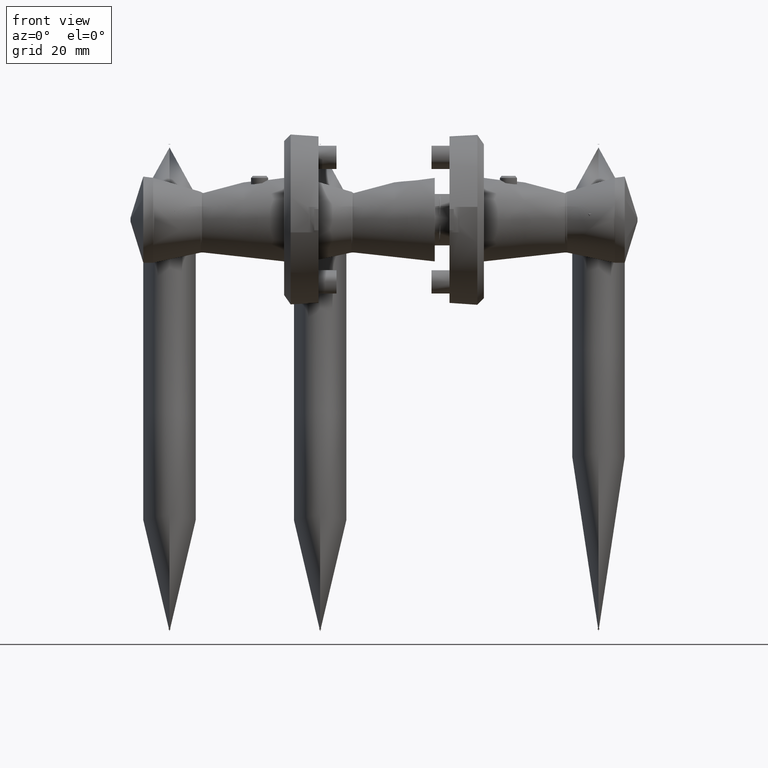
[diagram: clean part render]
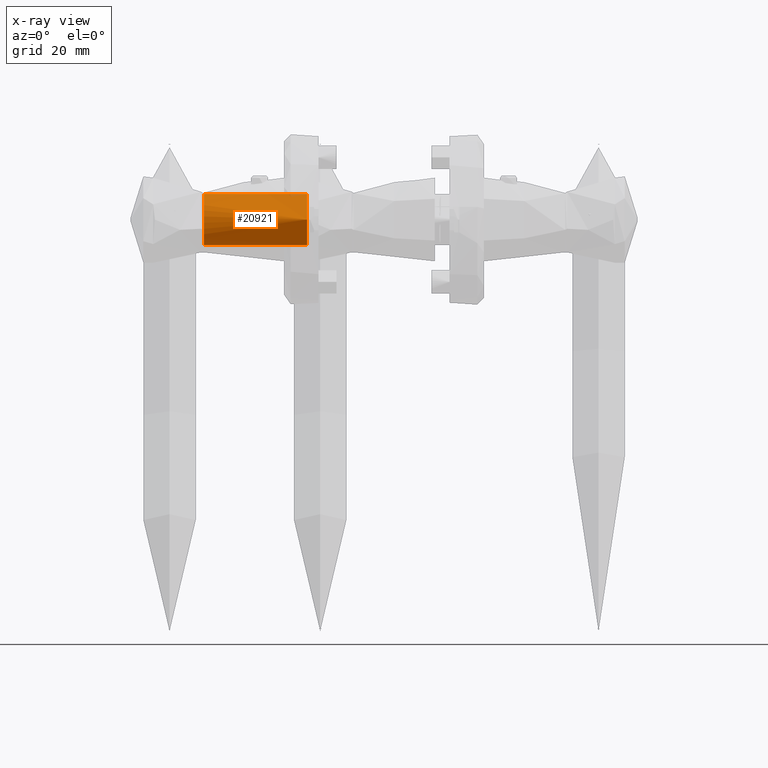
[diagram: x-ray — body ghosted, one internal face saturated and labeled with its STEP entity id]
A machine part, front view, then the same camera in x-ray: the body is ghosted and one INTERNAL B-rep face — a face not visible from any outside direction — is saturated and labeled: STEP entity #20921.
In plain terms, the highlighted cylindrical surface (bore or boss wall) has radius 7.85 mm, axis along (1, -0, 0).
Its self-contained STEP definition (entity closure, byte-faithful):
#193 = CARTESIAN_POINT ( 'NONE',  ( -2.332032967751791000, 2.419320908842566500, 6.849024537163265000 ) ) ;
#500 = CARTESIAN_POINT ( 'NONE',  ( -2.204687313181861600, 1.997229744117843900, 9.038161069933451600 ) ) ;
#669 = CARTESIAN_POINT ( 'NONE',  ( -1.975401069011184700, -0.6512087187244575100, 9.919252164818809400 ) ) ;
#859 = AXIS2_PLACEMENT_3D ( 'NONE', #22105, #32604, #25166 ) ;
#1851 = FACE_BOUND ( 'NONE', #28116, .T. ) ;
#2069 = CARTESIAN_POINT ( 'NONE',  ( -1.950000000000003700, 0.0000000000000000000, 9.999999999999998200 ) ) ;
#2229 = CARTESIAN_POINT ( 'NONE',  ( -1.950000000000002200, -1.540743955509788700E-030, 24.50000000000000400 ) ) ;
#2364 = EDGE_LOOP ( 'NONE', ( #19512 ) ) ;
#2861 = EDGE_CURVE ( 'NONE', #42682, #42682, #20266, .T. ) ;
#3574 = CARTESIAN_POINT ( 'NONE',  ( -2.178237088088308800, 1.882872320206646600, 5.847327085301095000 ) ) ;
#3883 = CARTESIAN_POINT ( 'NONE',  ( -1.975360598605854400, 0.6506773914354803100, 9.919382335193827100 ) ) ;
#4147 = DIRECTION ( 'NONE',  ( -4.930380657631323800E-032, -2.708156025014320000E-032, -1.000000000000000000 ) ) ;
#4458 = VERTEX_POINT ( 'NONE', #21328 ) ;
#7158 = CARTESIAN_POINT ( 'NONE',  ( -2.125298850725607600, 1.653862943130005800, 9.381742250496413900 ) ) ;
#7405 = CARTESIAN_POINT ( 'NONE',  ( -9.800000000000004300, -1.540743955509788700E-030, 24.50000000000000400 ) ) ;
#7471 = CARTESIAN_POINT ( 'NONE',  ( -2.277701288959411000, 2.245415541473274200, 6.388600133605322600 ) ) ;
#7631 = CARTESIAN_POINT ( 'NONE',  ( -2.098814674166306700, 1.527437675453569500, 5.514210146021984100 ) ) ;
#7792 = CARTESIAN_POINT ( 'NONE',  ( -1.975438278726483700, -0.6520438707957726400, 5.080865027122196200 ) ) ;
#8114 = CARTESIAN_POINT ( 'NONE',  ( -2.124852006187543100, -1.651858893999302600, 5.616388023070398600 ) ) ;
#8581 = CARTESIAN_POINT ( 'NONE',  ( -2.178193592102579700, -1.882711239978612300, 5.847114561690546000 ) ) ;
#10876 = CARTESIAN_POINT ( 'NONE',  ( -2.331953651937856100, 2.419078772989926600, 8.152085949960660800 ) ) ;
#11037 = CARTESIAN_POINT ( 'NONE',  ( -2.258489346735791200, 2.182940008413206900, 8.761182814414107500 ) ) ;
#11208 = CARTESIAN_POINT ( 'NONE',  ( -2.027718302237833100, 1.112353659052461200, 9.744878191350069900 ) ) ;
#11354 = CARTESIAN_POINT ( 'NONE',  ( -1.990421415154610500, 0.8099368660496068000, 5.129219729421328600 ) ) ;
#11892 = DIRECTION ( 'NONE',  ( 4.930380657631323800E-032, 2.708156025014320000E-032, 1.000000000000000000 ) ) ;
#11973 = CARTESIAN_POINT ( 'NONE',  ( -2.353272379704628700, -2.483927050670777800, 7.827365174470015700 ) ) ;
#12307 = CARTESIAN_POINT ( 'NONE',  ( -2.277493905325219400, -2.244724847799438400, 6.387186893733562500 ) ) ;
#14595 = CARTESIAN_POINT ( 'NONE',  ( -2.027546660310510300, 1.111073571916674200, 5.254535162568857700 ) ) ;
#14748 = CARTESIAN_POINT ( 'NONE',  ( -2.358691909127927500, 2.499886779604182600, 7.665969627596673800 ) ) ;
#15010 = DIRECTION ( 'NONE',  ( -1.000000000000000000, 0.0000000000000000000, 0.0000000000000000000 ) ) ;
#15073 = CARTESIAN_POINT ( 'NONE',  ( -2.124991034199245700, 1.652487650323281300, 5.616965081919939700 ) ) ;
#15241 = CARTESIAN_POINT ( 'NONE',  ( -2.027393085559543500, -1.110030853112572700, 5.254003660950455200 ) ) ;
#15390 = CARTESIAN_POINT ( 'NONE',  ( -2.353057057999242500, -2.483281829276064100, 7.168260144729440100 ) ) ;
#15551 = CARTESIAN_POINT ( 'NONE',  ( -2.125309370236196000, -1.653917895037600600, 9.381705236244958000 ) ) ;
#16021 = CARTESIAN_POINT ( 'NONE',  ( -2.331899841439355500, -2.418910466870163800, 6.847610447314207400 ) ) ;
#16755 = CIRCLE ( 'NONE', #859, 7.850000000000003200 ) ;
#18338 = CARTESIAN_POINT ( 'NONE',  ( -2.098649725234991600, -1.526616055230512800, 5.513571094196454900 ) ) ;
#18495 = CARTESIAN_POINT ( 'NONE',  ( -2.316578114705572000, 2.371764267103500400, 6.692637083956152600 ) ) ;
#18578 = ORIENTED_EDGE ( 'NONE', *, *, #2861, .T. ) ;
#18814 = CARTESIAN_POINT ( 'NONE',  ( -1.950021670309646700, 0.1649011203877686300, 5.000068044777511200 ) ) ;
#19290 = CARTESIAN_POINT ( 'NONE',  ( -2.332127616856070100, -2.419613174249179100, 8.150025874492421000 ) ) ;
#19512 = ORIENTED_EDGE ( 'NONE', *, *, #47218, .F. ) ;
#20266 = B_SPLINE_CURVE_WITH_KNOTS ( 'NONE', 3,
 ( #44779, #22032, #25742, #3883, #29629, #11208, #33180, #36718, #7158, #500, #11037, #36866, #10876, #47820, #14748, #29804, #44299, #193, #18495, #7471, #33008, #37014, #3574, #15073, #7631, #44455, #14595, #11354, #40422, #22351, #18814, #29472, #44144, #7792, #37341, #15241, #22660, #18338, #8114, #8581, #30115, #45243, #12307, #34414, #16021, #15390, #23122, #45078, #11973, #19290, #45390, #37812, #41852, #15551, #34264, #27159, #30735, #41377, #669, #26995, #22966, #38123 ),
 .UNSPECIFIED., .T., .F.,
 ( 4, 2, 2, 2, 2, 2, 2, 2, 2, 2, 2, 2, 2, 2, 2, 2, 2, 2, 2, 2, 2, 2, 2, 2, 2, 2, 2, 2, 2, 2, 4 ),
 ( 0.0000000000000000000, 0.0004916676346564878400, 0.0009833352693129756800, 0.001475002903969464000, 0.001966670538625952200, 0.002950005807938928800, 0.003441673442595418800, 0.003933341077251909700, 0.004425008711908399700, 0.004916676346564889700, 0.005408343981221381400, 0.005900011615877871400, 0.006391679250534361400, 0.006883346885190851400, 0.007375014519847343200, 0.007866682154503833200, 0.008358349789160324900, 0.008850017423816814900, 0.009341685058473306700, 0.009833352693129796700, 0.01032502032778629000, 0.01081668796244278200, 0.01130835559709927200, 0.01180002323175576400, 0.01229169086641225500, 0.01278335850106874500, 0.01376669377038172200, 0.01425836140503821500, 0.01475002903969470700, 0.01524169667435119700, 0.01573336430900768700 ),
 .UNSPECIFIED. ) ;
#20364 = CIRCLE ( 'NONE', #44467, 7.850000000000003200 ) ;
#20921 = ADVANCED_FACE ( 'NONE', ( #1851, #34221, #35396 ), #27903, .T. ) ;
#21328 = CARTESIAN_POINT ( 'NONE',  ( -1.950000000000002200, -1.540743955509788700E-030, -6.999999999999999100 ) ) ;
#22032 = CARTESIAN_POINT ( 'NONE',  ( -1.950000000000004200, 0.1663271035317407100, 10.00000000000000000 ) ) ;
#22105 = CARTESIAN_POINT ( 'NONE',  ( -9.800000000000004300, -1.540743955509788700E-030, 24.50000000000000400 ) ) ;
#22351 = CARTESIAN_POINT ( 'NONE',  ( -1.955297538070222000, 0.3307107556887456900, 5.016492887881385700 ) ) ;
#22660 = CARTESIAN_POINT ( 'NONE',  ( -2.049972585820549300, -1.256354931608740600, 5.332506363625986600 ) ) ;
#22881 = DIRECTION ( 'NONE',  ( 1.000000000000000000, 0.0000000000000000000, 0.0000000000000000000 ) ) ;
#22966 = CARTESIAN_POINT ( 'NONE',  ( -1.950000000000003500, -0.1663271035317414600, 9.999999999999998200 ) ) ;
#23122 = CARTESIAN_POINT ( 'NONE',  ( -2.358719915615803900, -2.499970141168991900, 7.334772854630326600 ) ) ;
#25166 = DIRECTION ( 'NONE',  ( 1.000000000000000000, 0.0000000000000000000, 0.0000000000000000000 ) ) ;
#25742 = CARTESIAN_POINT ( 'NONE',  ( -1.955276754880817200, 0.3296665543572495100, 9.983568383296791600 ) ) ;
#26995 = CARTESIAN_POINT ( 'NONE',  ( -1.955280179655502600, -0.3298365753949367700, 9.983558267054547700 ) ) ;
#27159 = CARTESIAN_POINT ( 'NONE',  ( -2.049868104465802300, -1.255727908668482300, 9.667869604537882500 ) ) ;
#27903 = CYLINDRICAL_SURFACE ( 'NONE', #40039, 7.850000000000001400 ) ;
#28116 = EDGE_LOOP ( 'NONE', ( #18578 ) ) ;
#29472 = CARTESIAN_POINT ( 'NONE',  ( -1.949978466111730100, -0.1628314269536448000, 4.999932383585608900 ) ) ;
#29629 = CARTESIAN_POINT ( 'NONE',  ( -1.990422550186745400, 0.8100577186500030900, 9.870783678293342700 ) ) ;
#29804 = CARTESIAN_POINT ( 'NONE',  ( -2.358767590165177000, 2.500112044877545300, 7.337458955391052300 ) ) ;
#30115 = CARTESIAN_POINT ( 'NONE',  ( -2.205016718890034700, -1.986824642136727300, 5.973967072932325100 ) ) ;
#30735 = CARTESIAN_POINT ( 'NONE',  ( -2.027775020038266700, -1.112723584859277400, 9.744680884073273900 ) ) ;
#31588 = EDGE_LOOP ( 'NONE', ( #46697 ) ) ;
#32604 = DIRECTION ( 'NONE',  ( 4.930380657631323800E-032, 2.708156025014320000E-032, 1.000000000000000000 ) ) ;
#33008 = CARTESIAN_POINT ( 'NONE',  ( -2.254673965305801000, 2.167789861347159300, 6.244209587272371700 ) ) ;
#33180 = CARTESIAN_POINT ( 'NONE',  ( -2.049835540205386900, 1.255547246565432700, 9.667990771411917100 ) ) ;
#34221 = FACE_OUTER_BOUND ( 'NONE', #31588, .T. ) ;
#34264 = CARTESIAN_POINT ( 'NONE',  ( -2.098586111927952300, -1.526309635492223000, 9.486678156997696100 ) ) ;
#34414 = CARTESIAN_POINT ( 'NONE',  ( -2.316444650212627900, -2.371347067262872300, 6.691386533385482900 ) ) ;
#34493 = CARTESIAN_POINT ( 'NONE',  ( -9.800000000000004300, -1.540743955509788700E-030, -6.999999999999999100 ) ) ;
#35396 = FACE_OUTER_BOUND ( 'NONE', #2364, .T. ) ;
#36718 = CARTESIAN_POINT ( 'NONE',  ( -2.098619396321425700, 1.526494297239595600, 9.486554311812353600 ) ) ;
#36866 = CARTESIAN_POINT ( 'NONE',  ( -2.316176063174198800, 2.370476067375543000, 8.310737631373987400 ) ) ;
#37014 = CARTESIAN_POINT ( 'NONE',  ( -2.205139297483602600, 1.987296848023907000, 5.974557873437206900 ) ) ;
#37341 = CARTESIAN_POINT ( 'NONE',  ( -1.990259856097241500, -0.8084216882191654900, 5.128687615706727600 ) ) ;
#37812 = CARTESIAN_POINT ( 'NONE',  ( -2.258555993685989800, -2.183181670281119300, 8.760974231041247500 ) ) ;
#38123 = CARTESIAN_POINT ( 'NONE',  ( -1.950000000000003700, 2.168404344971008900E-016, 9.999999999999998200 ) ) ;
#40039 = AXIS2_PLACEMENT_3D ( 'NONE', #7405, #4147, #15010 ) ;
#40422 = CARTESIAN_POINT ( 'NONE',  ( -1.975611367669905900, 0.6539639519109058400, 5.081424318018344300 ) ) ;
#41377 = CARTESIAN_POINT ( 'NONE',  ( -1.990504578532329400, -0.8108120482076920400, 9.870512575395311600 ) ) ;
#41852 = CARTESIAN_POINT ( 'NONE',  ( -2.204762430838691100, -1.997535714934927500, 9.037818931509356400 ) ) ;
#42682 = VERTEX_POINT ( 'NONE', #2069 ) ;
#43570 = EDGE_CURVE ( 'NONE', #4458, #4458, #20364, .T. ) ;
#44144 = CARTESIAN_POINT ( 'NONE',  ( -1.955152015191746800, -0.3275476067856449800, 5.016033858577812600 ) ) ;
#44299 = CARTESIAN_POINT ( 'NONE',  ( -2.353169705818937800, 2.483619098085723600, 7.170577947304400000 ) ) ;
#44455 = CARTESIAN_POINT ( 'NONE',  ( -2.050145285200965200, 1.257407322524557700, 5.333123441028847700 ) ) ;
#44467 = AXIS2_PLACEMENT_3D ( 'NONE', #34493, #11892, #22881 ) ;
#44779 = CARTESIAN_POINT ( 'NONE',  ( -1.950000000000003700, 2.168404344971008900E-016, 9.999999999999998200 ) ) ;
#45078 = CARTESIAN_POINT ( 'NONE',  ( -2.358739951104628800, -2.500029776963275100, 7.664322337496988000 ) ) ;
#45243 = CARTESIAN_POINT ( 'NONE',  ( -2.254496921815410300, -2.167170158535895600, 6.243169797845405700 ) ) ;
#45390 = CARTESIAN_POINT ( 'NONE',  ( -2.316337309387358700, -2.370987707599418100, 8.309321842416745000 ) ) ;
#45488 = VERTEX_POINT ( 'NONE', #2229 ) ;
#46697 = ORIENTED_EDGE ( 'NONE', *, *, #43570, .T. ) ;
#47218 = EDGE_CURVE ( 'NONE', #45488, #45488, #16755, .T. ) ;
#47820 = CARTESIAN_POINT ( 'NONE',  ( -2.353210535344124800, 2.483744156676579900, 7.828896883903584400 ) ) ;